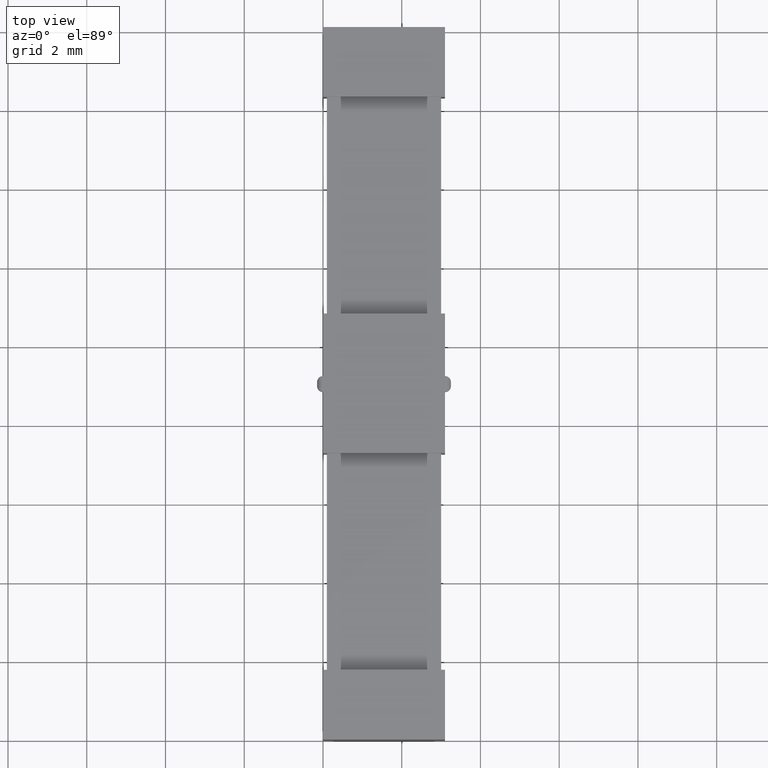
[diagram: clean part render]
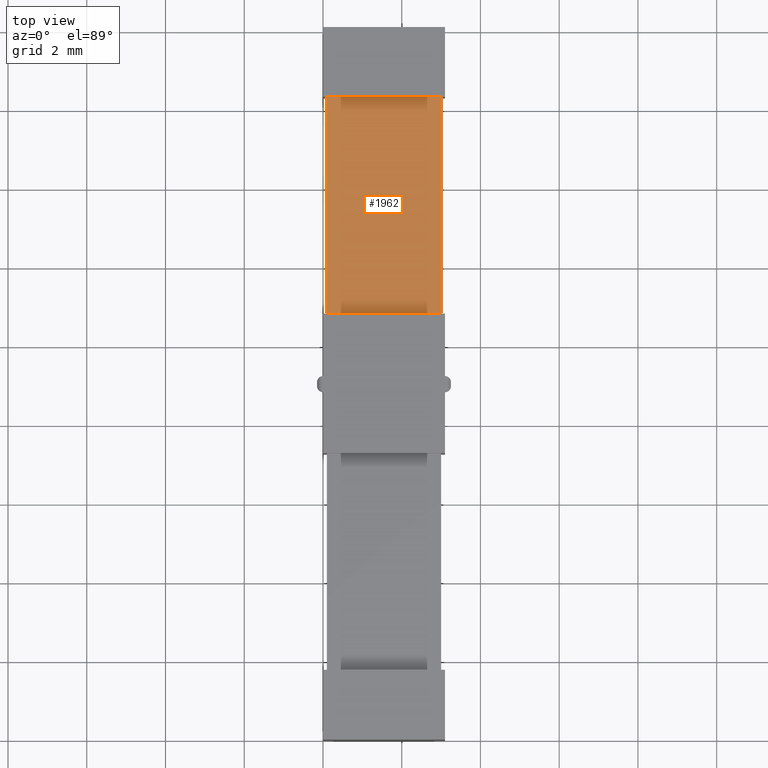
[diagram: same view with one face highlighted and labeled with its STEP entity id]
A machine part, top view. The second image highlights one B-rep face of the part: STEP entity #1962.
In plain terms, the highlighted planar face has unit normal (0, 0, -1).
Its self-contained STEP definition (entity closure, byte-faithful):
#7 = VECTOR ( 'NONE', #1466, 1000.000000000000000 ) ;
#26 = CARTESIAN_POINT ( 'NONE',  ( 0.09999999999999957500, 16.32620000000000700, 2.250000000000000000 ) ) ;
#84 = PLANE ( 'NONE',  #523 ) ;
#147 = VECTOR ( 'NONE', #696, 1000.000000000000000 ) ;
#218 = LINE ( 'NONE', #1567, #1502 ) ;
#349 = ORIENTED_EDGE ( 'NONE', *, *, #1543, .T. ) ;
#367 = LINE ( 'NONE', #1521, #2729 ) ;
#390 = EDGE_CURVE ( 'NONE', #753, #2852, #2934, .T. ) ;
#523 = AXIS2_PLACEMENT_3D ( 'NONE', #3212, #1925, #1147 ) ;
#674 = FACE_OUTER_BOUND ( 'NONE', #2995, .T. ) ;
#696 = DIRECTION ( 'NONE',  ( 0.0000000000000000000, -1.000000000000000000, -1.576333487184506900E-016 ) ) ;
#751 = ORIENTED_EDGE ( 'NONE', *, *, #390, .F. ) ;
#753 = VERTEX_POINT ( 'NONE', #3317 ) ;
#1147 = DIRECTION ( 'NONE',  ( -1.000000000000000000, 0.0000000000000000000, -0.0000000000000000000 ) ) ;
#1192 = VERTEX_POINT ( 'NONE', #1907 ) ;
#1466 = DIRECTION ( 'NONE',  ( -0.0000000000000000000, -1.000000000000000000, -1.576333487184506900E-016 ) ) ;
#1502 = VECTOR ( 'NONE', #1861, 1000.000000000000000 ) ;
#1521 = CARTESIAN_POINT ( 'NONE',  ( 4.972310933898082800E-016, 16.32620000000000700, 2.250000000000000000 ) ) ;
#1543 = EDGE_CURVE ( 'NONE', #1889, #1192, #3349, .T. ) ;
#1567 = CARTESIAN_POINT ( 'NONE',  ( 4.972310933898082800E-016, 10.82380000000000400, 2.250000000000000000 ) ) ;
#1783 = DIRECTION ( 'NONE',  ( -1.000000000000000000, -0.0000000000000000000, -0.0000000000000000000 ) ) ;
#1824 = EDGE_CURVE ( 'NONE', #1192, #2852, #218, .T. ) ;
#1861 = DIRECTION ( 'NONE',  ( 1.000000000000000000, 0.0000000000000000000, 0.0000000000000000000 ) ) ;
#1889 = VERTEX_POINT ( 'NONE', #26 ) ;
#1907 = CARTESIAN_POINT ( 'NONE',  ( 0.09999999999999957500, 10.82380000000000400, 2.249999999999999100 ) ) ;
#1925 = DIRECTION ( 'NONE',  ( 0.0000000000000000000, 0.0000000000000000000, -1.000000000000000000 ) ) ;
#1962 = ADVANCED_FACE ( 'NONE', ( #674 ), #84, .F. ) ;
#2140 = CARTESIAN_POINT ( 'NONE',  ( 2.999999999999999600, 10.82380000000000400, 2.249999999999999100 ) ) ;
#2250 = CARTESIAN_POINT ( 'NONE',  ( 2.999999999999999600, 16.32620000000000700, 2.250000000000000000 ) ) ;
#2593 = EDGE_CURVE ( 'NONE', #753, #1889, #367, .T. ) ;
#2728 = CARTESIAN_POINT ( 'NONE',  ( 0.09999999999999957500, 16.32620000000000700, 2.250000000000000000 ) ) ;
#2729 = VECTOR ( 'NONE', #1783, 1000.000000000000000 ) ;
#2852 = VERTEX_POINT ( 'NONE', #2140 ) ;
#2934 = LINE ( 'NONE', #2250, #147 ) ;
#2995 = EDGE_LOOP ( 'NONE', ( #349, #3068, #751, #2999 ) ) ;
#2999 = ORIENTED_EDGE ( 'NONE', *, *, #2593, .T. ) ;
#3068 = ORIENTED_EDGE ( 'NONE', *, *, #1824, .T. ) ;
#3212 = CARTESIAN_POINT ( 'NONE',  ( 0.0000000000000000000, 0.0000000000000000000, 2.250000000000000000 ) ) ;
#3317 = CARTESIAN_POINT ( 'NONE',  ( 2.999999999999999600, 16.32620000000000700, 2.250000000000000000 ) ) ;
#3349 = LINE ( 'NONE', #2728, #7 ) ;